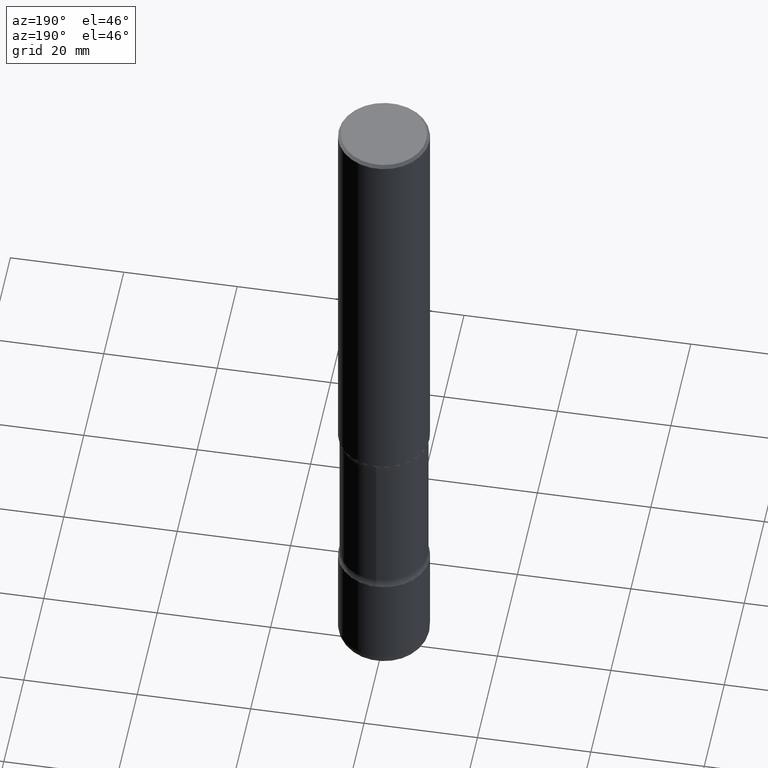
[diagram: clean part render]
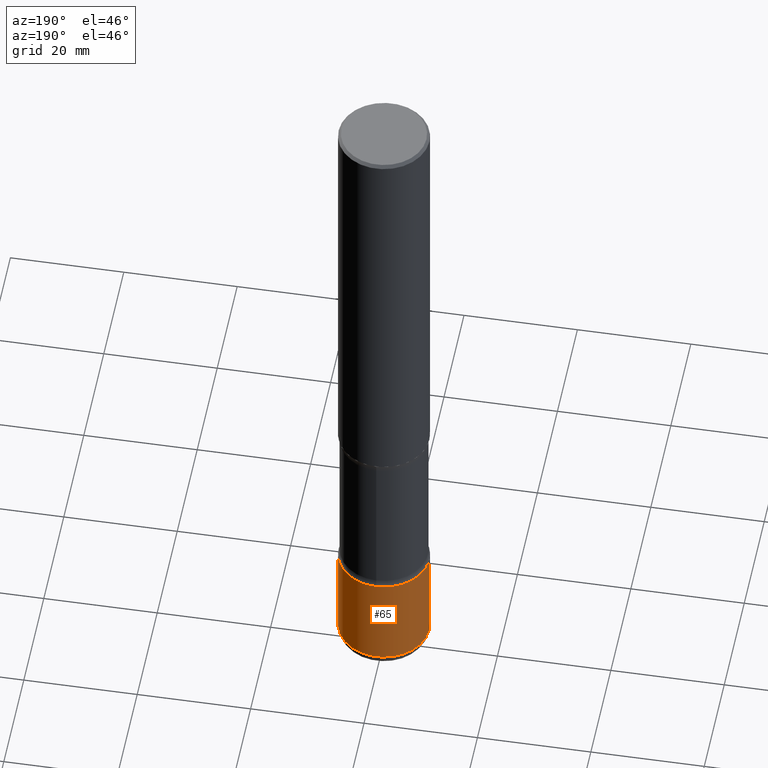
[diagram: same view with one face highlighted and labeled with its STEP entity id]
A machine part, auxiliary view. The second image highlights one B-rep face of the part: STEP entity #65.
In plain terms, the highlighted cylindrical surface (partial cylindrical patch) has radius 7.9997 mm, axis along (-0, 0, 1).
Its self-contained STEP definition (entity closure, byte-faithful):
#17 = ORIENTED_EDGE ( 'NONE', *, *, #553, .T. ) ;
#49 = DIRECTION ( 'NONE',  ( -2.445468806185136597E-29, 3.491481338843145583E-15, 1.000000000000000000 ) ) ;
#55 = CARTESIAN_POINT ( 'NONE',  ( 1.010932349788873450E-28, -1.443343470664368071E-14, -4.133899999999999686 ) ) ;
#56 = VERTEX_POINT ( 'NONE', #507 ) ;
#64 = VERTEX_POINT ( 'NONE', #288 ) ;
#65 = ADVANCED_FACE ( 'NONE', ( #125 ), #201, .T. ) ;
#68 = CARTESIAN_POINT ( 'NONE',  ( -0.3149500000000001743, 2.237854346276436774E-15, -1.549218606675783237E-29 ) ) ;
#75 = CARTESIAN_POINT ( 'NONE',  ( 1.179425150535029431E-28, -1.683906534910660571E-14, -4.822899999999999743 ) ) ;
#81 = AXIS2_PLACEMENT_3D ( 'NONE', #75, #426, #124 ) ;
#124 = DIRECTION ( 'NONE',  ( 1.000000000000000000, -6.982962677686272233E-15, 0.000000000000000000 ) ) ;
#125 = FACE_OUTER_BOUND ( 'NONE', #323, .T. ) ;
#146 = CARTESIAN_POINT ( 'NONE',  ( 0.3149500000000001743, -1.663271880198097216E-14, -4.133899999999999686 ) ) ;
#147 = ORIENTED_EDGE ( 'NONE', *, *, #509, .T. ) ;
#151 = EDGE_CURVE ( 'NONE', #194, #436, #366, .T. ) ;
#171 = DIRECTION ( 'NONE',  ( -2.445468806185136877E-29, 3.491481338843145188E-15, 1.000000000000000000 ) ) ;
#194 = VERTEX_POINT ( 'NONE', #146 ) ;
#201 = CYLINDRICAL_SURFACE ( 'NONE', #221, 0.3149500000000001743 ) ;
#221 = AXIS2_PLACEMENT_3D ( 'NONE', #240, #392, #342 ) ;
#233 = CARTESIAN_POINT ( 'NONE',  ( 0.3149500000000001743, -2.199284095337290660E-15, 1.535751875536930690E-29 ) ) ;
#240 = CARTESIAN_POINT ( 'NONE',  ( 0.000000000000000000, 0.000000000000000000, 0.000000000000000000 ) ) ;
#248 = EDGE_CURVE ( 'NONE', #56, #194, #354, .T. ) ;
#255 = CARTESIAN_POINT ( 'NONE',  ( -0.3149500000000001743, -1.339839568159870722E-14, -4.133899999999999686 ) ) ;
#288 = CARTESIAN_POINT ( 'NONE',  ( -0.3149500000000002298, -1.460121100283016657E-14, -4.822899999999999743 ) ) ;
#297 = VECTOR ( 'NONE', #171, 39.37007874015748143 ) ;
#321 = CIRCLE ( 'NONE', #81, 0.3149500000000001743 ) ;
#323 = EDGE_LOOP ( 'NONE', ( #147, #17, #375, #440 ) ) ;
#342 = DIRECTION ( 'NONE',  ( 1.000000000000000000, -6.982962677686265922E-15, 4.876176775795935232E-29 ) ) ;
#345 = VECTOR ( 'NONE', #542, 39.37007874015748143 ) ;
#354 = LINE ( 'NONE', #233, #297 ) ;
#366 = CIRCLE ( 'NONE', #557, 0.3149500000000001743 ) ;
#375 = ORIENTED_EDGE ( 'NONE', *, *, #151, .F. ) ;
#392 = DIRECTION ( 'NONE',  ( -2.445468806185136597E-29, 3.491481338843145583E-15, 1.000000000000000000 ) ) ;
#414 = LINE ( 'NONE', #68, #345 ) ;
#426 = DIRECTION ( 'NONE',  ( -2.445468806185136597E-29, 3.491481338843145583E-15, 1.000000000000000000 ) ) ;
#436 = VERTEX_POINT ( 'NONE', #255 ) ;
#440 = ORIENTED_EDGE ( 'NONE', *, *, #248, .F. ) ;
#446 = DIRECTION ( 'NONE',  ( 1.000000000000000000, -6.982962677686265922E-15, 0.000000000000000000 ) ) ;
#507 = CARTESIAN_POINT ( 'NONE',  ( 0.3149500000000002298, -1.903834944444389400E-14, -4.822899999999999743 ) ) ;
#509 = EDGE_CURVE ( 'NONE', #56, #64, #321, .T. ) ;
#542 = DIRECTION ( 'NONE',  ( -2.445468806185136877E-29, 3.491481338843145188E-15, 1.000000000000000000 ) ) ;
#553 = EDGE_CURVE ( 'NONE', #64, #436, #414, .T. ) ;
#557 = AXIS2_PLACEMENT_3D ( 'NONE', #55, #49, #446 ) ;